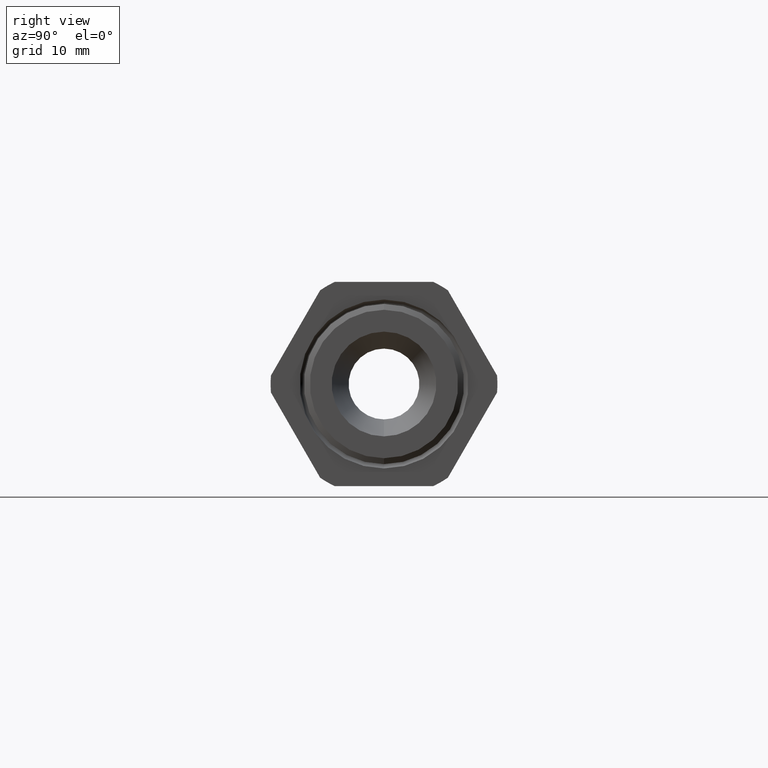
[diagram: clean part render]
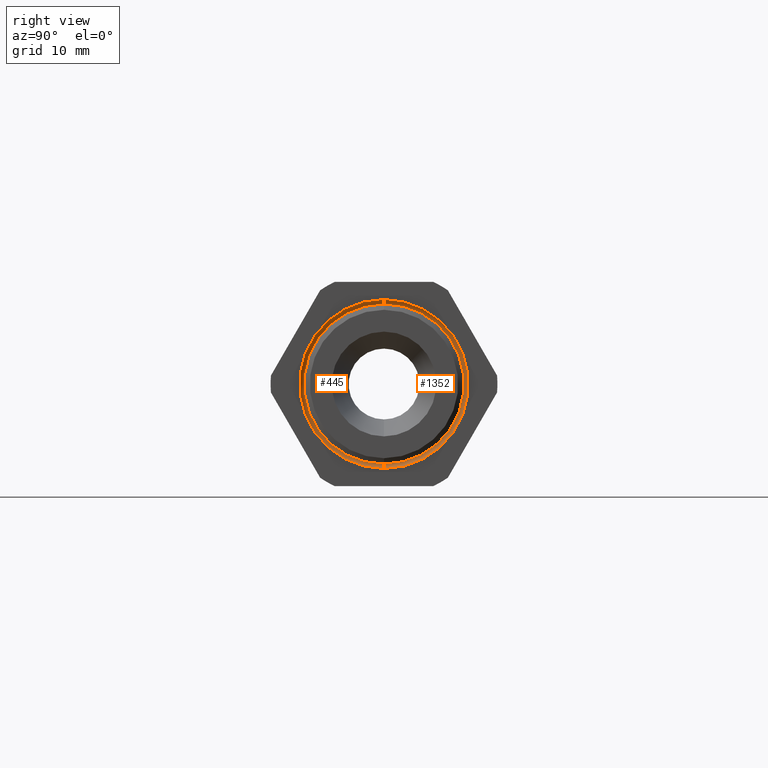
[diagram: same view with one multi-face feature highlighted, each face labeled with its STEP entity id]
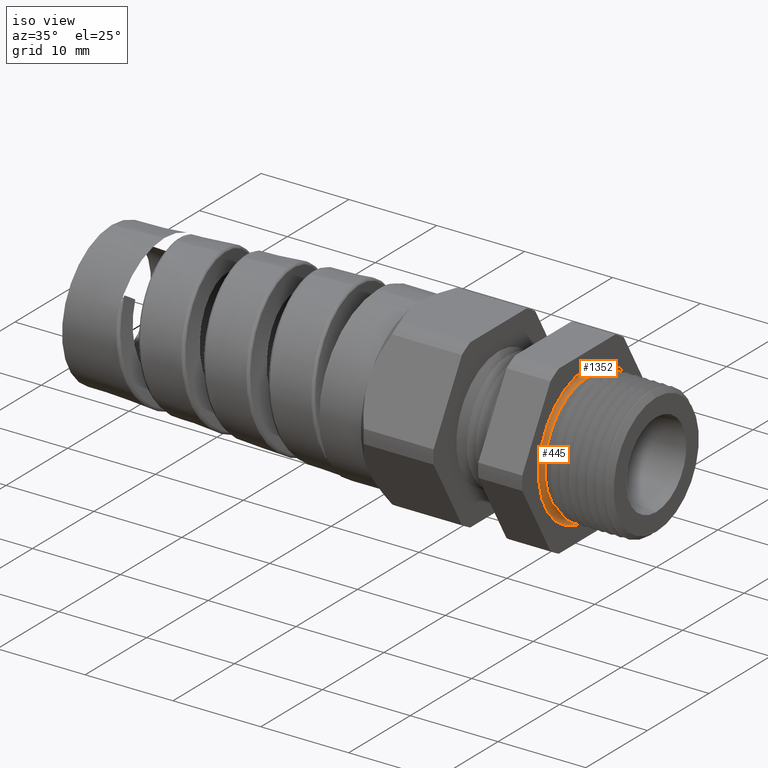
[diagram: same view with one multi-face feature highlighted, each face labeled with its STEP entity id]
A machine part, right view. The highlighted faces form ONE feature: a constant-radius fillet chain: 2 tangent blend faces with common blend radius 0.508 mm. The faces share edges in the B-rep.
A second angle (iso view) of the same feature is appended — it is thin or edge-on in the first view.
Their STEP definitions:
[1] entity #445 (Torus):
#360 = ORIENTED_EDGE ( 'NONE', *, *, #361, .T. ) ;
#361 = EDGE_CURVE ( 'NONE', #1014, #362, #4945, .T. ) ;
#362 = VERTEX_POINT ( 'NONE', #4940 ) ;
#364 = ORIENTED_EDGE ( 'NONE', *, *, #365, .F. ) ;
#365 = EDGE_CURVE ( 'NONE', #366, #362, #4939, .T. ) ;
#366 = VERTEX_POINT ( 'NONE', #4934 ) ;
#367 = ORIENTED_EDGE ( 'NONE', *, *, #368, .F. ) ;
#368 = EDGE_CURVE ( 'NONE', #1011, #366, #4932, .T. ) ;
#384 = EDGE_CURVE ( 'NONE', #1014, #1011, #4962, .T. ) ;
#397 = EDGE_LOOP ( 'NONE', ( #446, #360, #364, #367 ) ) ;
#445 = ADVANCED_FACE ( 'NONE', ( #5105 ), #5098, .F. ) ;
#446 = ORIENTED_EDGE ( 'NONE', *, *, #384, .F. ) ;
#1011 = VERTEX_POINT ( 'NONE', #7214 ) ;
#1014 = VERTEX_POINT ( 'NONE', #7208 ) ;
#4928 = DIRECTION ( 'NONE',  ( 0.0000000000000000000, 0.0000000000000000000, -1.000000000000000000 ) ) ;
#4929 = DIRECTION ( 'NONE',  ( 0.0000000000000000000, -1.000000000000000000, 0.0000000000000000000 ) ) ;
#4930 = CARTESIAN_POINT ( 'NONE',  ( -0.3099999999999998300, 0.0000000000000000000, -0.2899999999999999800 ) ) ;
#4931 = AXIS2_PLACEMENT_3D ( 'NONE', #4930, #4929, #4928 ) ;
#4932 = CIRCLE ( 'NONE', #4931, 0.01999999999999999000 ) ;
#4934 = CARTESIAN_POINT ( 'NONE',  ( -0.3100000000000000000, 0.0000000000000000000, -0.3100000000000000000 ) ) ;
#4935 = DIRECTION ( 'NONE',  ( 0.0000000000000000000, 0.0000000000000000000, -1.000000000000000000 ) ) ;
#4936 = DIRECTION ( 'NONE',  ( -1.000000000000000000, 0.0000000000000000000, 0.0000000000000000000 ) ) ;
#4937 = CARTESIAN_POINT ( 'NONE',  ( -0.3100000000000000000, 0.0000000000000000000, 0.0000000000000000000 ) ) ;
#4938 = AXIS2_PLACEMENT_3D ( 'NONE', #4937, #4936, #4935 ) ;
#4939 = CIRCLE ( 'NONE', #4938, 0.3100000000000000000 ) ;
#4940 = CARTESIAN_POINT ( 'NONE',  ( -0.3100000000000000000, 3.796405077356794500E-017, 0.3100000000000000000 ) ) ;
#4941 = DIRECTION ( 'NONE',  ( 0.0000000000000000000, 1.224646799147354900E-016, 1.000000000000000000 ) ) ;
#4942 = DIRECTION ( 'NONE',  ( 0.0000000000000000000, 1.000000000000000000, -1.224646799147353200E-016 ) ) ;
#4943 = CARTESIAN_POINT ( 'NONE',  ( -0.3099999999999998300, 3.551475717527323800E-017, 0.2899999999999999800 ) ) ;
#4944 = AXIS2_PLACEMENT_3D ( 'NONE', #4943, #4942, #4941 ) ;
#4945 = CIRCLE ( 'NONE', #4944, 0.01999999999999999000 ) ;
#4958 = DIRECTION ( 'NONE',  ( 0.0000000000000000000, 0.0000000000000000000, -1.000000000000000000 ) ) ;
#4959 = DIRECTION ( 'NONE',  ( 1.000000000000000000, 0.0000000000000000000, 0.0000000000000000000 ) ) ;
#4960 = CARTESIAN_POINT ( 'NONE',  ( -0.3099999999999998300, 0.0000000000000000000, 0.0000000000000000000 ) ) ;
#4961 = AXIS2_PLACEMENT_3D ( 'NONE', #4960, #4959, #4958 ) ;
#4962 = CIRCLE ( 'NONE', #4961, 0.2699999999999999600 ) ;
#5095 = DIRECTION ( 'NONE',  ( 0.0000000000000000000, 0.0000000000000000000, -1.000000000000000000 ) ) ;
#5096 = DIRECTION ( 'NONE',  ( 1.000000000000000000, 0.0000000000000000000, 0.0000000000000000000 ) ) ;
#5097 = AXIS2_PLACEMENT_3D ( 'NONE', #5099, #5096, #5095 ) ;
#5098 = TOROIDAL_SURFACE ( 'NONE', #5097, 0.2899999999999999800, 0.02000000000000000700 ) ;
#5099 = CARTESIAN_POINT ( 'NONE',  ( -0.3099999999999998300, 0.0000000000000000000, 0.0000000000000000000 ) ) ;
#5105 = FACE_OUTER_BOUND ( 'NONE', #397, .T. ) ;
#7208 = CARTESIAN_POINT ( 'NONE',  ( -0.3099999999999998300, 3.306546357697853700E-017, 0.2699999999999999600 ) ) ;
#7214 = CARTESIAN_POINT ( 'NONE',  ( -0.3099999999999998300, 0.0000000000000000000, -0.2699999999999999600 ) ) ;
[2] entity #1352 (Torus):
#361 = EDGE_CURVE ( 'NONE', #1014, #362, #4945, .T. ) ;
#362 = VERTEX_POINT ( 'NONE', #4940 ) ;
#366 = VERTEX_POINT ( 'NONE', #4934 ) ;
#368 = EDGE_CURVE ( 'NONE', #1011, #366, #4932, .T. ) ;
#962 = EDGE_CURVE ( 'NONE', #362, #366, #7134, .T. ) ;
#1011 = VERTEX_POINT ( 'NONE', #7214 ) ;
#1013 = EDGE_CURVE ( 'NONE', #1011, #1014, #7213, .T. ) ;
#1014 = VERTEX_POINT ( 'NONE', #7208 ) ;
#1336 = ORIENTED_EDGE ( 'NONE', *, *, #962, .F. ) ;
#1341 = EDGE_LOOP ( 'NONE', ( #1350, #1354, #1336, #1370 ) ) ;
#1350 = ORIENTED_EDGE ( 'NONE', *, *, #1013, .F. ) ;
#1352 = ADVANCED_FACE ( 'NONE', ( #7317 ), #7316, .F. ) ;
#1354 = ORIENTED_EDGE ( 'NONE', *, *, #368, .T. ) ;
#1370 = ORIENTED_EDGE ( 'NONE', *, *, #361, .F. ) ;
#4928 = DIRECTION ( 'NONE',  ( 0.0000000000000000000, 0.0000000000000000000, -1.000000000000000000 ) ) ;
#4929 = DIRECTION ( 'NONE',  ( 0.0000000000000000000, -1.000000000000000000, 0.0000000000000000000 ) ) ;
#4930 = CARTESIAN_POINT ( 'NONE',  ( -0.3099999999999998300, 0.0000000000000000000, -0.2899999999999999800 ) ) ;
#4931 = AXIS2_PLACEMENT_3D ( 'NONE', #4930, #4929, #4928 ) ;
#4932 = CIRCLE ( 'NONE', #4931, 0.01999999999999999000 ) ;
#4934 = CARTESIAN_POINT ( 'NONE',  ( -0.3100000000000000000, 0.0000000000000000000, -0.3100000000000000000 ) ) ;
#4940 = CARTESIAN_POINT ( 'NONE',  ( -0.3100000000000000000, 3.796405077356794500E-017, 0.3100000000000000000 ) ) ;
#4941 = DIRECTION ( 'NONE',  ( 0.0000000000000000000, 1.224646799147354900E-016, 1.000000000000000000 ) ) ;
#4942 = DIRECTION ( 'NONE',  ( 0.0000000000000000000, 1.000000000000000000, -1.224646799147353200E-016 ) ) ;
#4943 = CARTESIAN_POINT ( 'NONE',  ( -0.3099999999999998300, 3.551475717527323800E-017, 0.2899999999999999800 ) ) ;
#4944 = AXIS2_PLACEMENT_3D ( 'NONE', #4943, #4942, #4941 ) ;
#4945 = CIRCLE ( 'NONE', #4944, 0.01999999999999999000 ) ;
#7130 = DIRECTION ( 'NONE',  ( 0.0000000000000000000, 0.0000000000000000000, -1.000000000000000000 ) ) ;
#7131 = DIRECTION ( 'NONE',  ( -1.000000000000000000, 0.0000000000000000000, 0.0000000000000000000 ) ) ;
#7132 = CARTESIAN_POINT ( 'NONE',  ( -0.3100000000000000000, 0.0000000000000000000, 0.0000000000000000000 ) ) ;
#7133 = AXIS2_PLACEMENT_3D ( 'NONE', #7132, #7131, #7130 ) ;
#7134 = CIRCLE ( 'NONE', #7133, 0.3100000000000000000 ) ;
#7208 = CARTESIAN_POINT ( 'NONE',  ( -0.3099999999999998300, 3.306546357697853700E-017, 0.2699999999999999600 ) ) ;
#7209 = DIRECTION ( 'NONE',  ( 0.0000000000000000000, 0.0000000000000000000, -1.000000000000000000 ) ) ;
#7210 = DIRECTION ( 'NONE',  ( 1.000000000000000000, 0.0000000000000000000, 0.0000000000000000000 ) ) ;
#7211 = CARTESIAN_POINT ( 'NONE',  ( -0.3099999999999998300, 0.0000000000000000000, 0.0000000000000000000 ) ) ;
#7212 = AXIS2_PLACEMENT_3D ( 'NONE', #7211, #7210, #7209 ) ;
#7213 = CIRCLE ( 'NONE', #7212, 0.2699999999999999600 ) ;
#7214 = CARTESIAN_POINT ( 'NONE',  ( -0.3099999999999998300, 0.0000000000000000000, -0.2699999999999999600 ) ) ;
#7312 = DIRECTION ( 'NONE',  ( 0.0000000000000000000, 0.0000000000000000000, -1.000000000000000000 ) ) ;
#7313 = DIRECTION ( 'NONE',  ( 1.000000000000000000, 0.0000000000000000000, 0.0000000000000000000 ) ) ;
#7314 = CARTESIAN_POINT ( 'NONE',  ( -0.3099999999999998300, 0.0000000000000000000, 0.0000000000000000000 ) ) ;
#7315 = AXIS2_PLACEMENT_3D ( 'NONE', #7314, #7313, #7312 ) ;
#7316 = TOROIDAL_SURFACE ( 'NONE', #7315, 0.2899999999999999800, 0.02000000000000000700 ) ;
#7317 = FACE_OUTER_BOUND ( 'NONE', #1341, .T. ) ;